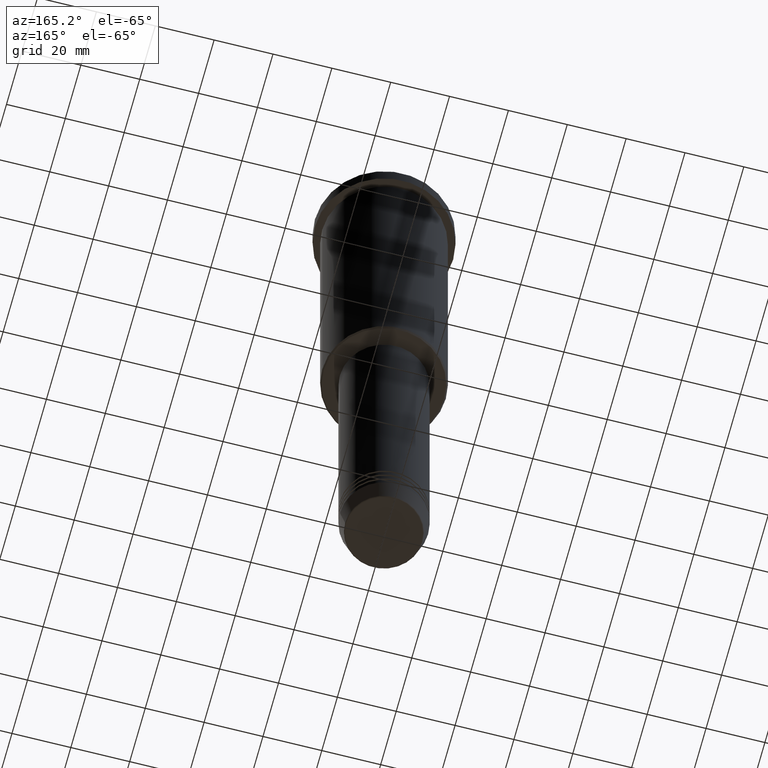
[diagram: clean part render]
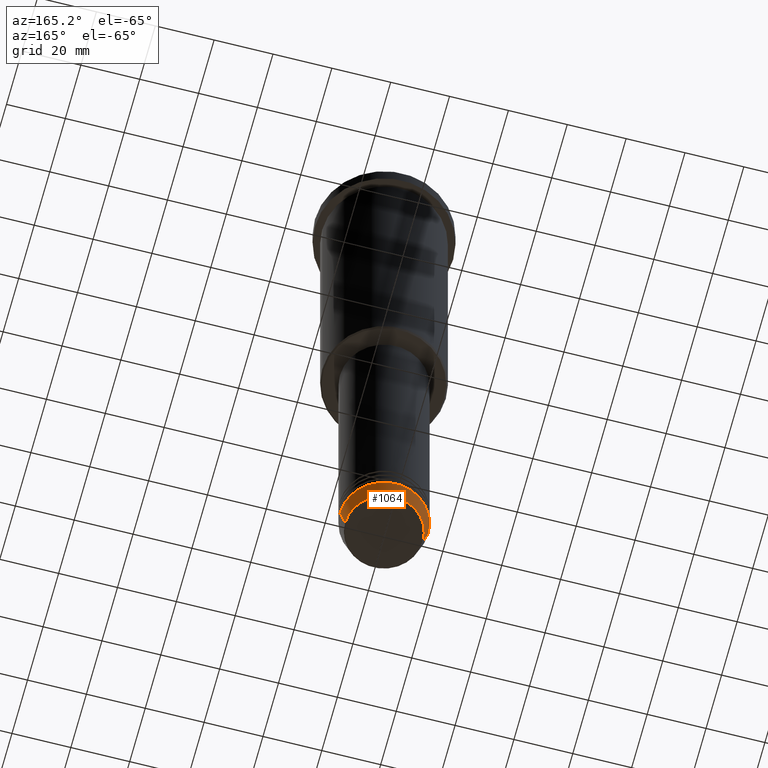
[diagram: same view with one face highlighted and labeled with its STEP entity id]
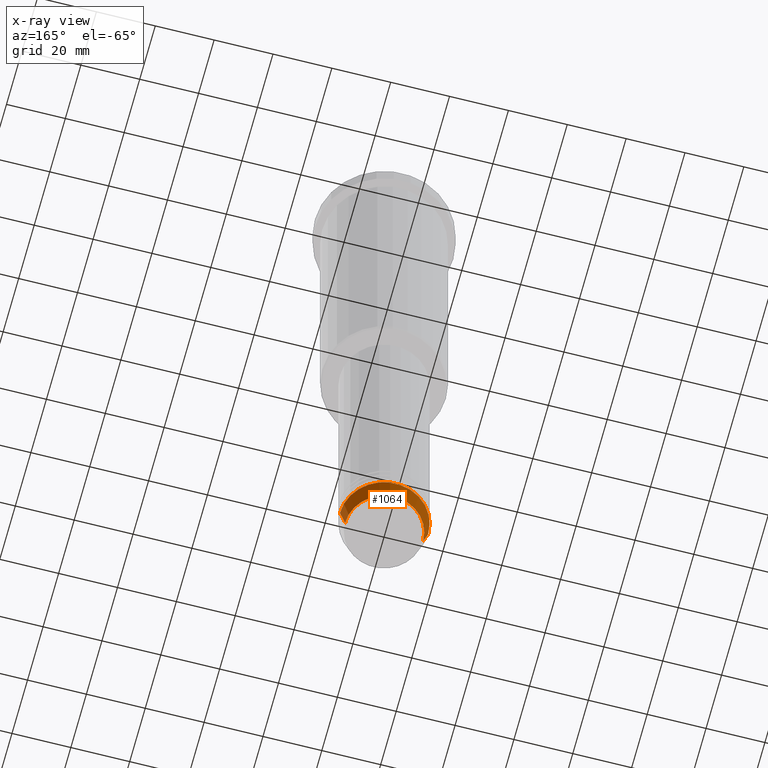
[diagram: x-ray of the same camera — body ghosted, the highlighted face saturated]
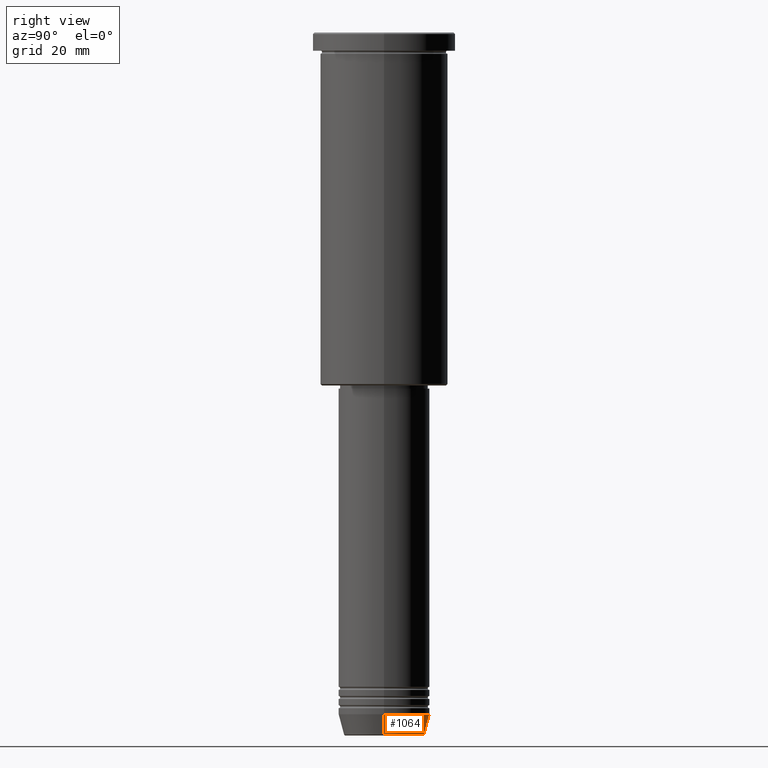
[diagram: same view with one face highlighted and labeled with its STEP entity id]
A machine part, auxiliary view. The second image highlights one B-rep face of the part: STEP entity #1064.
The next image is the same camera in x-ray: the body ghosted, the highlighted face saturated — about 0% of this face is hidden behind the body in this view.
A second angle (right view) of the same face is appended — the face is thin or edge-on in the first view.
In plain terms, the highlighted conical surface has half-angle 15 deg.
Its self-contained STEP definition (entity closure, byte-faithful):
#28 = CARTESIAN_POINT ( 'NONE',  ( 15.00000000000000000, 0.000000000000000000, -224.0000000000000000 ) ) ;
#31 = FACE_OUTER_BOUND ( 'NONE', #703, .T. ) ;
#43 = VERTEX_POINT ( 'NONE', #564 ) ;
#109 = EDGE_CURVE ( 'NONE', #1026, #647, #670, .T. ) ;
#119 = CARTESIAN_POINT ( 'NONE',  ( 0.000000000000000000, 0.000000000000000000, -224.0000000000000000 ) ) ;
#131 = CARTESIAN_POINT ( 'NONE',  ( 0.000000000000000000, 0.000000000000000000, -224.0000000000000000 ) ) ;
#152 = CARTESIAN_POINT ( 'NONE',  ( -15.00000000000000000, 1.836970198721029589E-15, -224.0000000000000000 ) ) ;
#172 = ORIENTED_EDGE ( 'NONE', *, *, #109, .F. ) ;
#173 = VERTEX_POINT ( 'NONE', #1035 ) ;
#263 = AXIS2_PLACEMENT_3D ( 'NONE', #550, #639, #1006 ) ;
#265 = AXIS2_PLACEMENT_3D ( 'NONE', #119, #386, #313 ) ;
#280 = VECTOR ( 'NONE', #970, 1000.000000000000000 ) ;
#313 = DIRECTION ( 'NONE',  ( 1.000000000000000000, 0.000000000000000000, 0.000000000000000000 ) ) ;
#386 = DIRECTION ( 'NONE',  ( -0.000000000000000000, -0.000000000000000000, 1.000000000000000000 ) ) ;
#424 = DIRECTION ( 'NONE',  ( 0.2588190451025213501, 0.000000000000000000, 0.9659258262890680902 ) ) ;
#488 = ORIENTED_EDGE ( 'NONE', *, *, #825, .T. ) ;
#496 = CARTESIAN_POINT ( 'NONE',  ( -15.00000000000000000, 1.836970198721029589E-15, -224.0000000000000000 ) ) ;
#502 = LINE ( 'NONE', #518, #797 ) ;
#518 = CARTESIAN_POINT ( 'NONE',  ( 15.00000000000000000, 0.000000000000000000, -224.0000000000000000 ) ) ;
#550 = CARTESIAN_POINT ( 'NONE',  ( 0.000000000000000000, 0.000000000000000000, -230.6294095225512422 ) ) ;
#564 = CARTESIAN_POINT ( 'NONE',  ( -13.22365507213719305, 1.728200442216588583E-15, -230.6294095225512422 ) ) ;
#572 = AXIS2_PLACEMENT_3D ( 'NONE', #131, #770, #1046 ) ;
#638 = ORIENTED_EDGE ( 'NONE', *, *, #735, .T. ) ;
#639 = DIRECTION ( 'NONE',  ( -0.000000000000000000, -0.000000000000000000, 1.000000000000000000 ) ) ;
#647 = VERTEX_POINT ( 'NONE', #496 ) ;
#670 = CIRCLE ( 'NONE', #572, 15.00000000000000000 ) ;
#703 = EDGE_LOOP ( 'NONE', ( #488, #638, #172, #974 ) ) ;
#735 = EDGE_CURVE ( 'NONE', #43, #647, #976, .T. ) ;
#770 = DIRECTION ( 'NONE',  ( -0.000000000000000000, -0.000000000000000000, 1.000000000000000000 ) ) ;
#797 = VECTOR ( 'NONE', #424, 1000.000000000000000 ) ;
#825 = EDGE_CURVE ( 'NONE', #173, #43, #883, .T. ) ;
#883 = CIRCLE ( 'NONE', #263, 13.22365507213719305 ) ;
#942 = CONICAL_SURFACE ( 'NONE', #265, 15.00000000000000000, 0.2617993877991500740 ) ;
#970 = DIRECTION ( 'NONE',  ( -0.2588190451025213501, 3.169619151431772337E-17, 0.9659258262890680902 ) ) ;
#974 = ORIENTED_EDGE ( 'NONE', *, *, #1132, .F. ) ;
#976 = LINE ( 'NONE', #152, #280 ) ;
#1006 = DIRECTION ( 'NONE',  ( 1.000000000000000000, 0.000000000000000000, 0.000000000000000000 ) ) ;
#1026 = VERTEX_POINT ( 'NONE', #28 ) ;
#1035 = CARTESIAN_POINT ( 'NONE',  ( 13.22365507213719305, 0.000000000000000000, -230.6294095225512422 ) ) ;
#1046 = DIRECTION ( 'NONE',  ( 1.000000000000000000, 0.000000000000000000, 0.000000000000000000 ) ) ;
#1064 = ADVANCED_FACE ( 'NONE', ( #31 ), #942, .T. ) ;
#1132 = EDGE_CURVE ( 'NONE', #173, #1026, #502, .T. ) ;